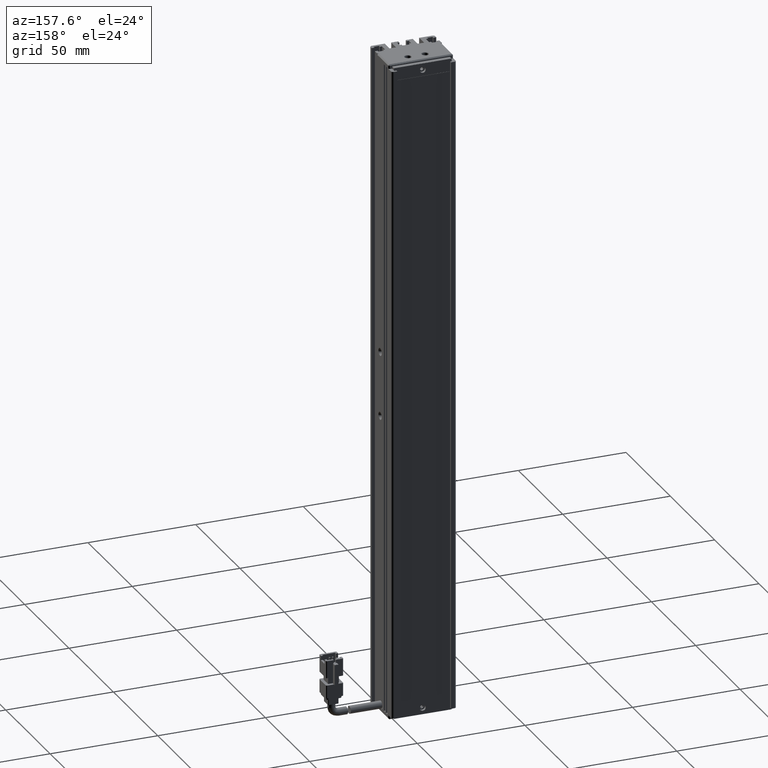
[diagram: clean part render]
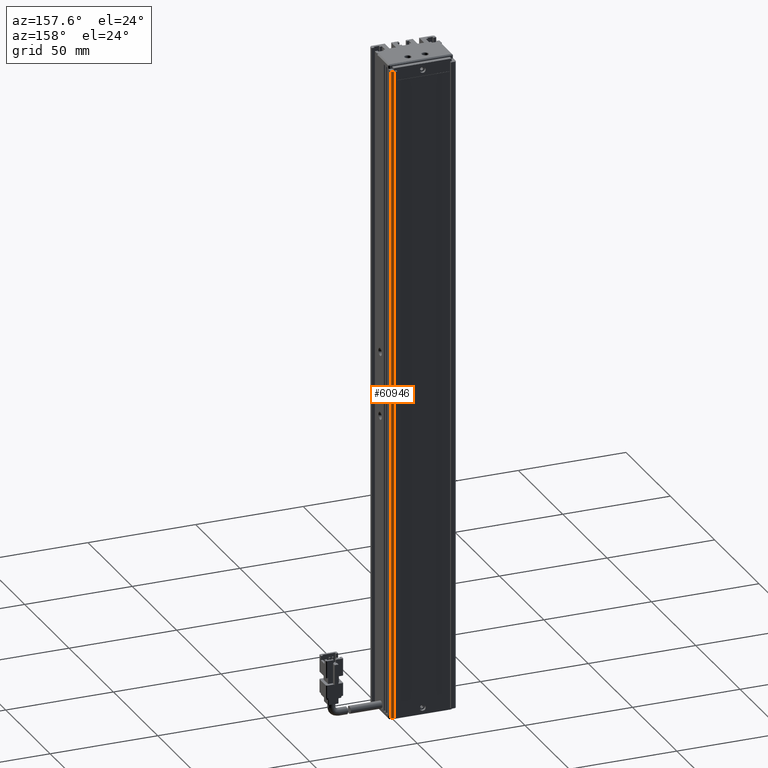
[diagram: same view with one face highlighted and labeled with its STEP entity id]
A machine part, auxiliary view. The second image highlights one B-rep face of the part: STEP entity #60946.
In plain terms, the highlighted cylindrical surface (edge-blend (fillet) strip) has radius 1 mm, axis along (-0, -0, -1).
Its self-contained STEP definition (entity closure, byte-faithful):
#122 = CARTESIAN_POINT ( 'NONE',  ( 54.92537974683542500, 35.69594479660387500, -267.0000000000000000 ) ) ;
#208 = DIRECTION ( 'NONE',  ( -0.0000000000000000000, -0.0000000000000000000, -1.000000000000000000 ) ) ;
#3381 = VECTOR ( 'NONE', #24822, 1000.000000000000000 ) ;
#10086 = EDGE_CURVE ( 'NONE', #40942, #57811, #53611, .T. ) ;
#11811 = ORIENTED_EDGE ( 'NONE', *, *, #39515, .T. ) ;
#11826 = EDGE_CURVE ( 'NONE', #48633, #40942, #32603, .T. ) ;
#12979 = CARTESIAN_POINT ( 'NONE',  ( 55.92537974683542500, 34.69594479660387500, 36.99999999999999300 ) ) ;
#14372 = VERTEX_POINT ( 'NONE', #12979 ) ;
#15614 = DIRECTION ( 'NONE',  ( 0.0000000000000000000, 0.0000000000000000000, 1.000000000000000000 ) ) ;
#15849 = VECTOR ( 'NONE', #51164, 1000.000000000000000 ) ;
#21951 = LINE ( 'NONE', #57499, #3381 ) ;
#24822 = DIRECTION ( 'NONE',  ( -0.0000000000000000000, -0.0000000000000000000, -1.000000000000000000 ) ) ;
#28664 = CARTESIAN_POINT ( 'NONE',  ( 54.92537974683542500, 34.69594479660387500, 36.99999999999999300 ) ) ;
#28989 = CIRCLE ( 'NONE', #36024, 1.000000000000000900 ) ;
#32337 = CARTESIAN_POINT ( 'NONE',  ( 54.92537974683542500, 35.69594479660387500, 38.99999999999999300 ) ) ;
#32603 = CIRCLE ( 'NONE', #52899, 1.000000000000000900 ) ;
#33379 = DIRECTION ( 'NONE',  ( -1.000000000000000000, 0.0000000000000000000, 0.0000000000000000000 ) ) ;
#34463 = DIRECTION ( 'NONE',  ( -0.0000000000000000000, -0.0000000000000000000, -1.000000000000000000 ) ) ;
#36024 = AXIS2_PLACEMENT_3D ( 'NONE', #28664, #208, #33379 ) ;
#37232 = ORIENTED_EDGE ( 'NONE', *, *, #11826, .T. ) ;
#37589 = ORIENTED_EDGE ( 'NONE', *, *, #10086, .T. ) ;
#38426 = CARTESIAN_POINT ( 'NONE',  ( 55.92537974683542500, 34.69594479660387500, -267.0000000000000000 ) ) ;
#39245 = CARTESIAN_POINT ( 'NONE',  ( 54.92537974683542500, 34.69594479660387500, 38.99999999999999300 ) ) ;
#39515 = EDGE_CURVE ( 'NONE', #14372, #48633, #21951, .T. ) ;
#40942 = VERTEX_POINT ( 'NONE', #122 ) ;
#43956 = CARTESIAN_POINT ( 'NONE',  ( 54.92537974683542500, 34.69594479660387500, -267.0000000000000000 ) ) ;
#44448 = CYLINDRICAL_SURFACE ( 'NONE', #52857, 1.000000000000000900 ) ;
#45813 = EDGE_LOOP ( 'NONE', ( #11811, #37232, #37589, #50823 ) ) ;
#48350 = CARTESIAN_POINT ( 'NONE',  ( 54.92537974683542500, 35.69594479660387500, 36.99999999999999300 ) ) ;
#48633 = VERTEX_POINT ( 'NONE', #38426 ) ;
#48739 = DIRECTION ( 'NONE',  ( -1.000000000000000000, 0.0000000000000000000, 0.0000000000000000000 ) ) ;
#50823 = ORIENTED_EDGE ( 'NONE', *, *, #58341, .T. ) ;
#51164 = DIRECTION ( 'NONE',  ( 0.0000000000000000000, 0.0000000000000000000, 1.000000000000000000 ) ) ;
#52857 = AXIS2_PLACEMENT_3D ( 'NONE', #39245, #34463, #58267 ) ;
#52899 = AXIS2_PLACEMENT_3D ( 'NONE', #43956, #15614, #48739 ) ;
#53611 = LINE ( 'NONE', #32337, #15849 ) ;
#57499 = CARTESIAN_POINT ( 'NONE',  ( 55.92537974683542500, 34.69594479660387500, 38.99999999999999300 ) ) ;
#57811 = VERTEX_POINT ( 'NONE', #48350 ) ;
#58267 = DIRECTION ( 'NONE',  ( -1.000000000000000000, 0.0000000000000000000, 0.0000000000000000000 ) ) ;
#58341 = EDGE_CURVE ( 'NONE', #57811, #14372, #28989, .T. ) ;
#60946 = ADVANCED_FACE ( 'NONE', ( #61567 ), #44448, .T. ) ;
#61567 = FACE_OUTER_BOUND ( 'NONE', #45813, .T. ) ;